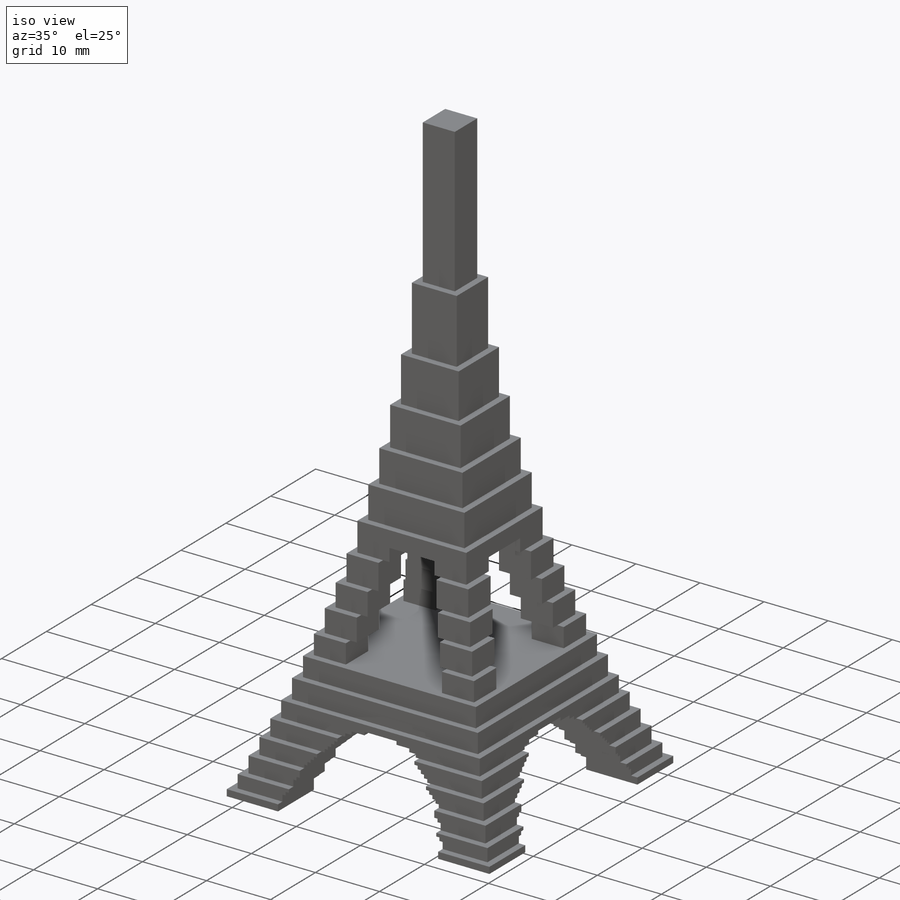
[diagram: iso view]
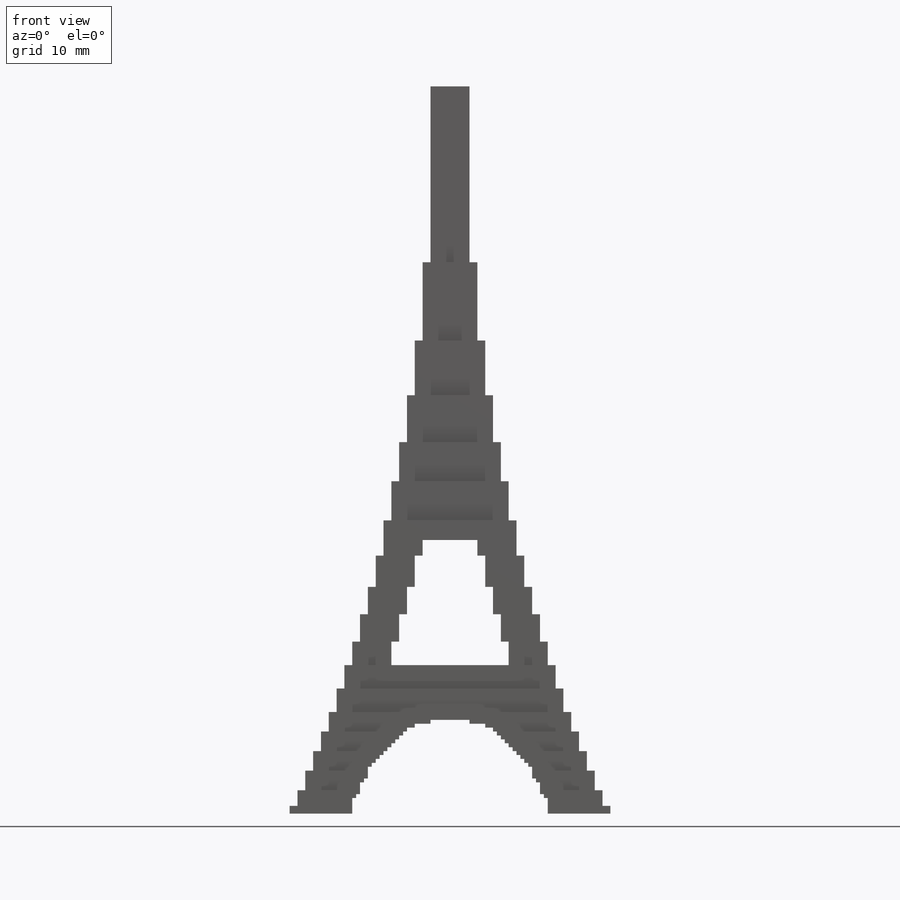
[diagram: front view]
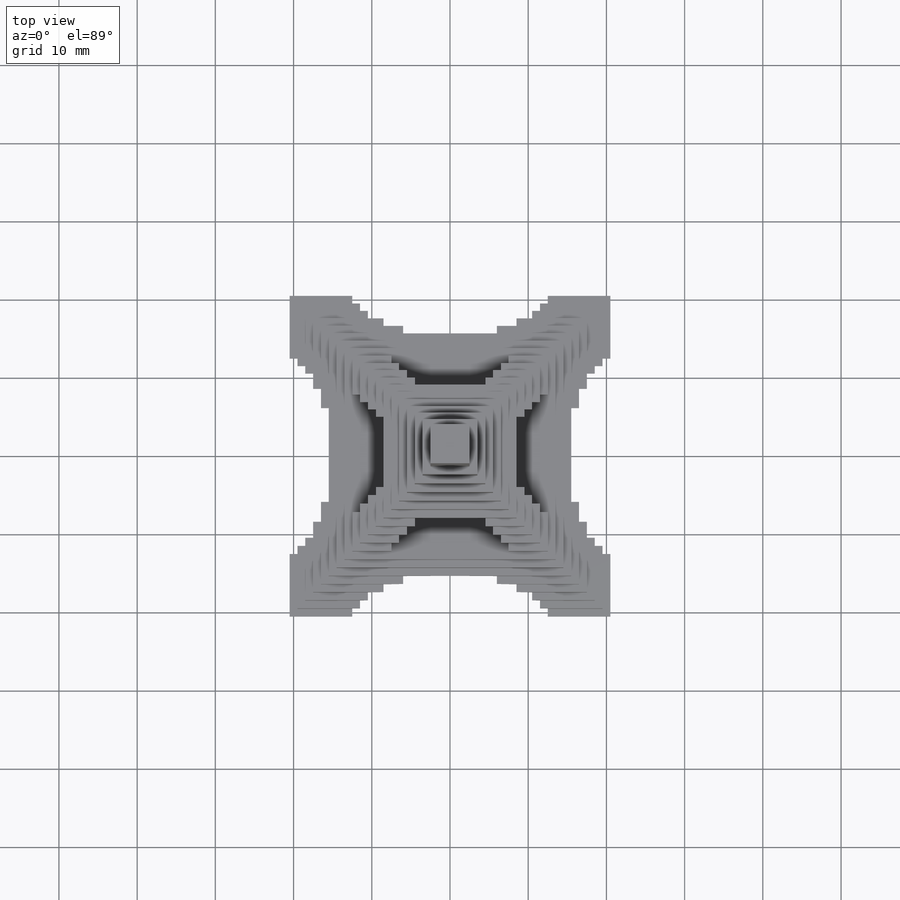
[diagram: top view]
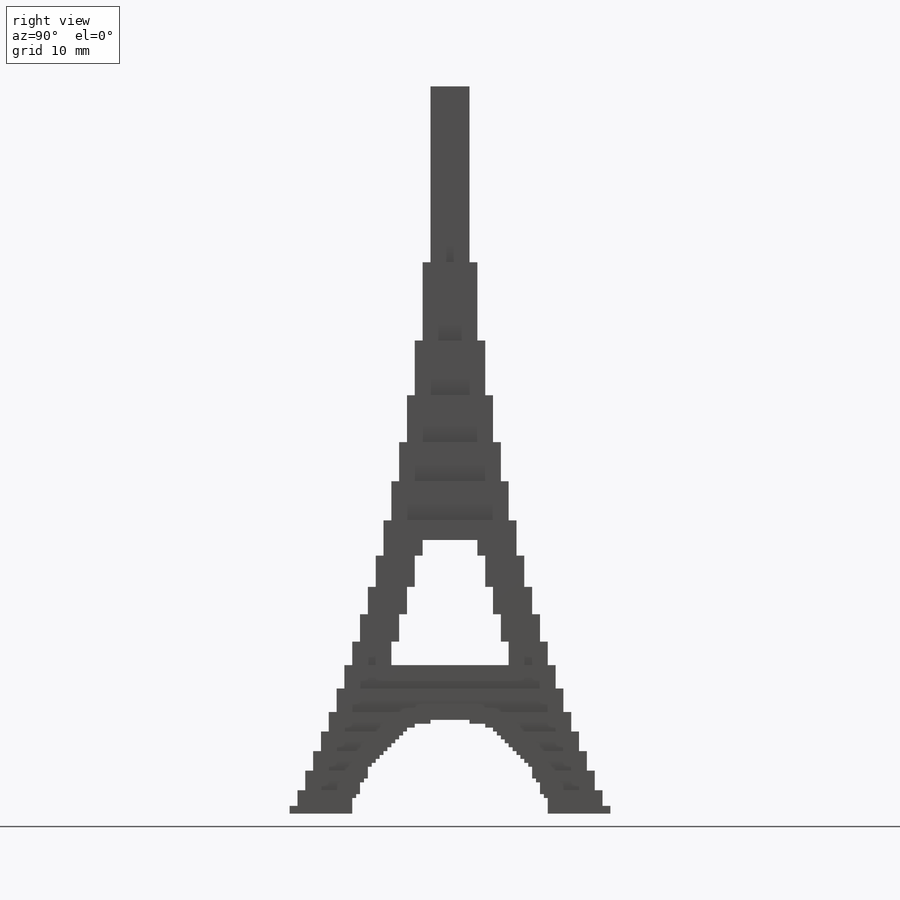
[diagram: right view]
SOLIDWORKS PART (.sldprt)
format: sldprt  version: not decoded by parser v0  size: 684,032 bytes
history: native  units: mm
features: sketch x6, plane x4, cut_extrude x3, mirror x2, material x1, extrude x1 (+9 scaffold rows collapsed)
feature tree (26):
  scaffold x9  (default folders/planes/origin — collapsed)
  material  "Material <nicht festgelegt>"
  plane  "Ebene vorne"
  plane  "Ebene oben"
  plane  "Ebene rechts"
  sketch  "Skizze1"  dims[c1.D5=~3.019697mm c1.D1=108.0mm c1.D2=41.0mm c1.D3=25.0mm c1.D4=15.0mm c2.D5=19.0mm c2.D6=38.0mm c2.D7=4.0mm]
  sketch  "Skizze3"  dims[D1=9.0134mm]
  sketch  "Skizze4"  dims[D1=~109.516569mm D2=~47.034944mm]
  extrude  "Aufsatz-Linear austragen2"  [1 undecoded]
  plane  "Ebene1"
  sketch  "Skizze2"  dims[c1.D1=2.5mm c1.D2=2.0mm c1.D3=1.0mm c1.D4=0.5mm c1.D5=7.0mm c1.D6=4.0mm c1.D7=0.5mm c1.D8=1.5mm c1.D9=1.5mm c1.D10=2.0mm c1.D11=14.5mm c1.D12=3.0mm c1.D13=1.0mm c1.D14=2.0mm c1.D15=2.0mm c1.D16=2.0mm c1.D17=2.5mm c1.D18=~2.781934mm c2.D15=3.0mm c2.D16=10.0mm c2.D18=10.0mm c2.D19=2.0mm c2.D20=4.0mm c2.D21=1.0mm c2.D22=~37.656373mm c2.D23=79.0mm c2.D11=~0.968631mm]
  cut_extrude  "Schnitt-Linear austragen1"  [1 undecoded]
  sketch  "Skizze5"  dims[c1.D1=2.5mm c1.D2=2.0mm c1.D3=1.0mm c1.D4=0.5mm c1.D5=7.0mm c1.D6=4.0mm c1.D7=0.5mm c1.D8=1.5mm c1.D9=1.5mm c1.D10=2.0mm c1.D11=14.5mm c1.D12=3.0mm c1.D13=1.0mm c1.D14=1.0mm c1.D15=2.0mm c1.D16=2.0mm c1.D17=2.5mm c1.D18=~2.781934mm c2.D15=3.0mm c2.D16=10.0mm c2.D18=10.0mm c2.D19=2.0mm c2.D20=4.0mm c2.D21=1.0mm c2.D22=40.5mm c2.D23=79.0mm c2.D11=~0.968631mm c2.D3=2.5mm c2.D4=3.0mm c2.D5=3.0mm c2.D6=3.0mm c2.D7=3.5mm c2.D8=3.5mm c2.D9=4.0mm c2.D10=4.5mm c3.D11=5.0mm c3.D12=5.0mm c3.D15=6.0mm c3.D18=7.0mm c3.D2=4.5mm c3.D10=3.5mm c3.D19=10.0mm c4.D10=2.5mm c4.D20=2.5mm c4.D21=2.0mm c4.D22=10.0mm]
  cut_extrude  "Schnitt-Linear austragen2"  [1 undecoded]
  sketch  "Skizze6"  dims[D1=7.5mm D2=3.0mm D3=1.0mm D4=3.5mm D5=3.5mm D6=35.0mm D7=4.0mm D8=3.5mm]
  cut_extrude  "Schnitt-Linear austragen5"  [1 undecoded]
  mirror  "Spiegeln2"
  mirror  "Spiegeln1"
decode coverage: 6 of 12 modeling features carry decoded parameters
note: ~ marks probable driven/reference dimensions
note: 4 parameter values undecoded
summary: no parameter record found for 4 features
note: suppression state not decoded; provenance and decode notes live in map.json
